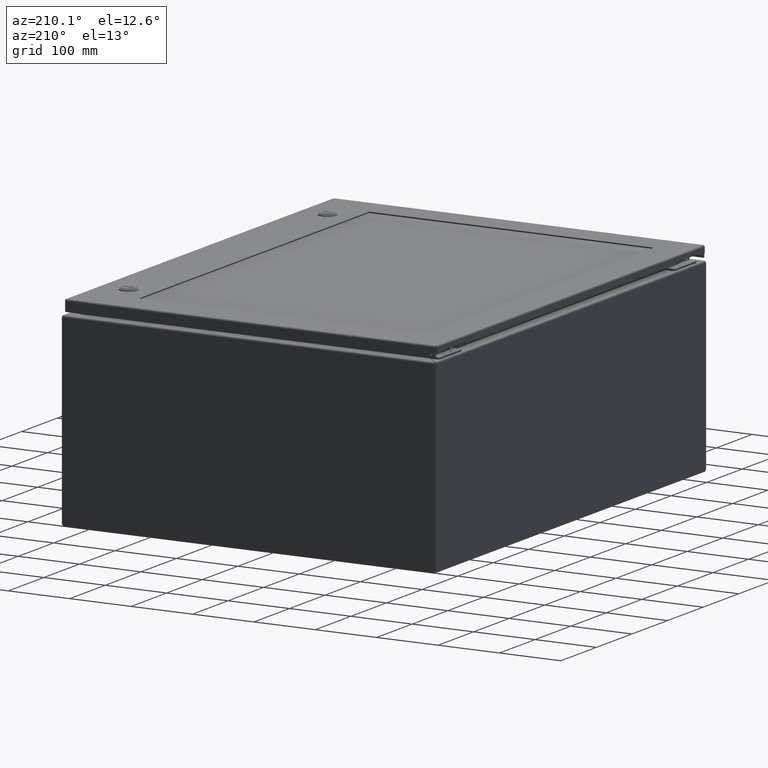
[diagram: clean part render]
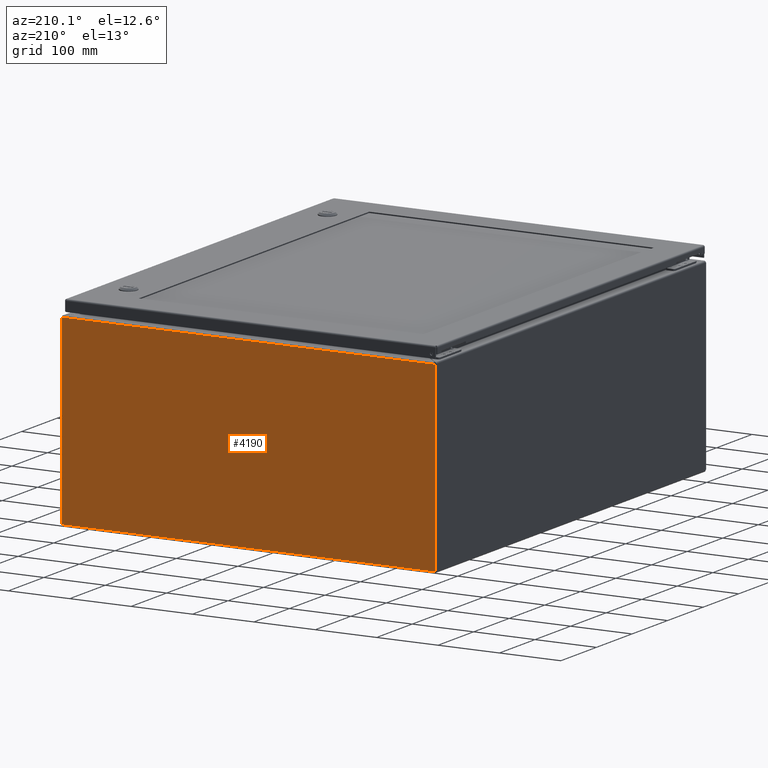
[diagram: same view with one face highlighted and labeled with its STEP entity id]
A machine part, auxiliary view. The second image highlights one B-rep face of the part: STEP entity #4190.
In plain terms, the highlighted planar face has unit normal (0, -1, 0).
Its self-contained STEP definition (entity closure, byte-faithful):
#2887=CARTESIAN_POINT('',(0.085048543456031,29.999999999999400,11.894750000000004));
#2888=VERTEX_POINT('',#2887);
#2920=CARTESIAN_POINT('',(23.914951456544028,29.999999999999421,11.894750000000014));
#2921=VERTEX_POINT('',#2920);
#2932=CARTESIAN_POINT('',(0.085048543456031,29.999999999999385,11.894750000000005));
#2933=DIRECTION('',(1.0,0.0,0.0));
#2934=VECTOR('',#2933,23.829902913087999);
#2935=LINE('',#2932,#2934);
#2936=EDGE_CURVE('',#2888,#2921,#2935,.T.);
#3419=CARTESIAN_POINT('',(23.962999999999994,29.999999999999421,11.894750000000018));
#3420=VERTEX_POINT('',#3419);
#3427=CARTESIAN_POINT('',(23.914951456544028,29.999999999999410,11.894750000000018));
#3428=DIRECTION('',(1.0,0.0,0.0));
#3429=VECTOR('',#3428,0.048048543455966);
#3430=LINE('',#3427,#3429);
#3431=EDGE_CURVE('',#2921,#3420,#3430,.T.);
#3690=CARTESIAN_POINT('',(0.036999999999997,29.999999999999392,11.894750000000007));
#3691=VERTEX_POINT('',#3690);
#3692=CARTESIAN_POINT('',(0.036999999999996,29.999999999999385,11.894750000000005));
#3693=DIRECTION('',(1.0,0.0,0.0));
#3694=VECTOR('',#3693,0.048048543456034);
#3695=LINE('',#3692,#3694);
#3696=EDGE_CURVE('',#3691,#2888,#3695,.T.);
#3721=CARTESIAN_POINT('',(0.037000000000004,29.999999999999993,0.124949529641808));
#3722=VERTEX_POINT('',#3721);
#3723=CARTESIAN_POINT('',(0.037000000000004,29.999999999998195,11.894750000000007));
#3724=DIRECTION('',(0.0,1.521324E-013,-1.0));
#3725=VECTOR('',#3724,11.769800470358199);
#3726=LINE('',#3723,#3725);
#3727=EDGE_CURVE('',#3691,#3722,#3726,.T.);
#4074=CARTESIAN_POINT('',(23.886393473394282,30.000000000000007,0.105250000000001));
#4075=VERTEX_POINT('',#4074);
#4082=CARTESIAN_POINT('',(23.963000000000005,30.000000000000004,0.124949529641808));
#4083=VERTEX_POINT('',#4082);
#4084=CARTESIAN_POINT('',(23.938473115756327,30.000000000000007,0.061526884243672));
#4085=DIRECTION('',(0.0,-1.0,0.0));
#4086=DIRECTION('',(1.0,0.0,0.0));
#4087=AXIS2_PLACEMENT_3D('',#4084,#4085,#4086);
#4088=CIRCLE('',#4087,0.068000000000000);
#4089=EDGE_CURVE('',#4083,#4075,#4088,.T.);
#4157=CARTESIAN_POINT('',(11.999999999999996,29.999999999999702,6.008901884243682));
#4158=DIRECTION('',(0.0,-1.0,0.0));
#4159=DIRECTION('',(1.0,0.0,0.0));
#4160=AXIS2_PLACEMENT_3D('',#4157,#4158,#4159);
#4161=PLANE('',#4160);
#4162=ORIENTED_EDGE('',*,*,#3696,.T.);
#4163=ORIENTED_EDGE('',*,*,#2936,.T.);
#4164=ORIENTED_EDGE('',*,*,#3431,.T.);
#4165=CARTESIAN_POINT('',(23.962999999999994,30.000000000000021,0.124949529641808));
#4166=DIRECTION('',(0.0,0.0,1.0));
#4167=VECTOR('',#4166,11.769800470358209);
#4168=LINE('',#4165,#4167);
#4169=EDGE_CURVE('',#4083,#3420,#4168,.T.);
#4170=ORIENTED_EDGE('',*,*,#4169,.F.);
#4171=ORIENTED_EDGE('',*,*,#4089,.T.);
#4172=CARTESIAN_POINT('',(0.113606526605694,30.000000000000004,0.105250000000007));
#4173=VERTEX_POINT('',#4172);
#4174=CARTESIAN_POINT('',(23.886393473394282,30.000000000000018,0.105250000000001));
#4175=DIRECTION('',(-1.0,0.0,0.0));
#4176=VECTOR('',#4175,23.772786946788585);
#4177=LINE('',#4174,#4176);
#4178=EDGE_CURVE('',#4075,#4173,#4177,.T.);
#4179=ORIENTED_EDGE('',*,*,#4178,.T.);
#4180=CARTESIAN_POINT('',(0.061526884243656,30.000000000000004,0.061526884243667));
#4181=DIRECTION('',(0.0,-1.0,0.0));
#4182=DIRECTION('',(1.0,0.0,0.0));
#4183=AXIS2_PLACEMENT_3D('',#4180,#4181,#4182);
#4184=CIRCLE('',#4183,0.068000000000000);
#4185=EDGE_CURVE('',#4173,#3722,#4184,.T.);
#4186=ORIENTED_EDGE('',*,*,#4185,.T.);
#4187=ORIENTED_EDGE('',*,*,#3727,.F.);
#4188=EDGE_LOOP('',(#4162,#4163,#4164,#4170,#4171,#4179,#4186,#4187));
#4189=FACE_OUTER_BOUND('',#4188,.T.);
#4190=ADVANCED_FACE('',(#4189),#4161,.F.);